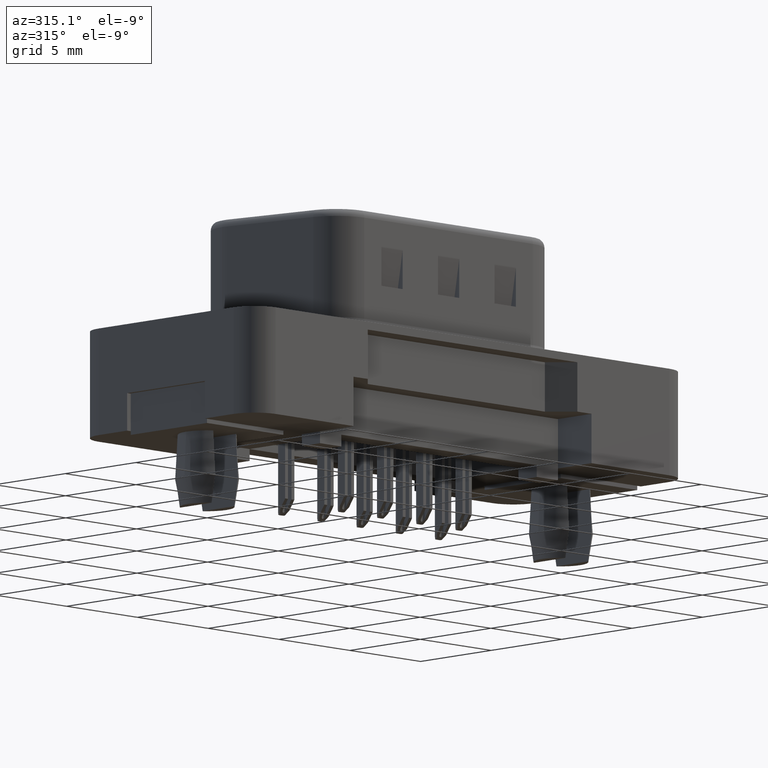
[diagram: clean part render]
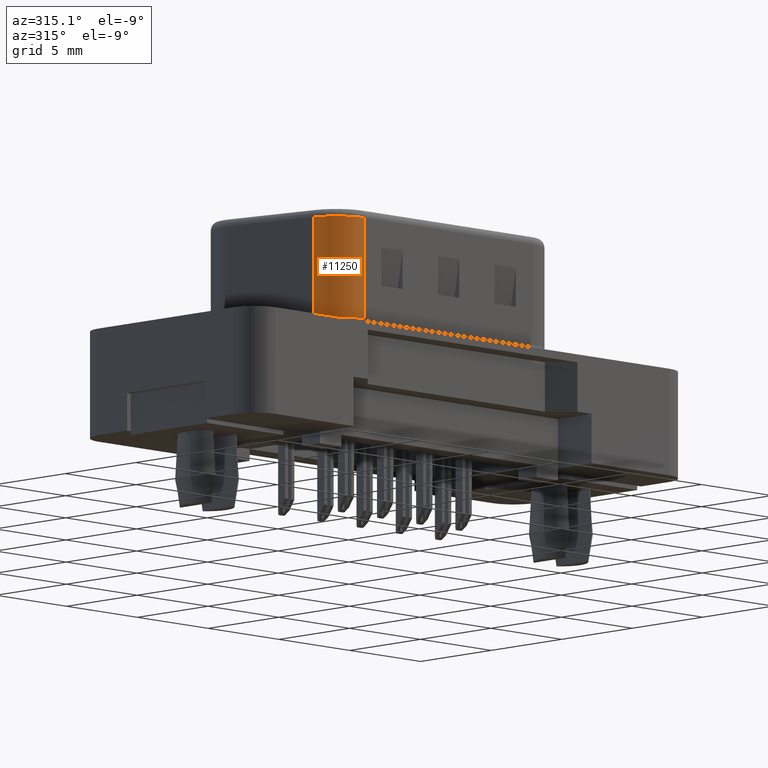
[diagram: same view with one face highlighted and labeled with its STEP entity id]
A machine part, auxiliary view. The second image highlights one B-rep face of the part: STEP entity #11250.
In plain terms, the highlighted cylindrical surface (partial cylindrical patch) has radius 2 mm, axis along (-0, -0, -1).
Its self-contained STEP definition (entity closure, byte-faithful):
#745 = CARTESIAN_POINT ( 'NONE',  ( 4.575231714431224894, -2.927296355333847799, 6.520000000000000462 ) ) ;
#1359 = AXIS2_PLACEMENT_3D ( 'NONE', #5407, #2038, #9873 ) ;
#1553 = ORIENTED_EDGE ( 'NONE', *, *, #1995, .T. ) ;
#1583 = DIRECTION ( 'NONE',  ( -0.0000000000000000000, -0.0000000000000000000, -1.000000000000000000 ) ) ;
#1752 = FACE_OUTER_BOUND ( 'NONE', #9006, .T. ) ;
#1794 = LINE ( 'NONE', #745, #12537 ) ;
#1816 = CYLINDRICAL_SURFACE ( 'NONE', #8895, 2.000000000000000000 ) ;
#1904 = LINE ( 'NONE', #5411, #3863 ) ;
#1995 = EDGE_CURVE ( 'NONE', #12633, #10842, #1794, .T. ) ;
#2038 = DIRECTION ( 'NONE',  ( 0.0000000000000000000, 0.0000000000000000000, 1.000000000000000000 ) ) ;
#2545 = CIRCLE ( 'NONE', #5237, 2.000000000000000000 ) ;
#2789 = DIRECTION ( 'NONE',  ( -1.000000000000000000, 0.0000000000000000000, 0.0000000000000000000 ) ) ;
#3097 = CARTESIAN_POINT ( 'NONE',  ( 4.575231714431224894, -2.927296355333847799, 0.8999999999999998002 ) ) ;
#3863 = VECTOR ( 'NONE', #8290, 1000.000000000000000 ) ;
#4113 = DIRECTION ( 'NONE',  ( -0.0000000000000000000, -0.0000000000000000000, -1.000000000000000000 ) ) ;
#5162 = ORIENTED_EDGE ( 'NONE', *, *, #11182, .T. ) ;
#5237 = AXIS2_PLACEMENT_3D ( 'NONE', #9795, #1583, #2789 ) ;
#5382 = DIRECTION ( 'NONE',  ( -0.0000000000000000000, -0.0000000000000000000, -1.000000000000000000 ) ) ;
#5407 = CARTESIAN_POINT ( 'NONE',  ( 6.544847220455644710, -2.580000000000000515, 0.8999999999999998002 ) ) ;
#5411 = CARTESIAN_POINT ( 'NONE',  ( 6.544847220455646486, -4.580000000000000959, 6.520000000000000462 ) ) ;
#5873 = ORIENTED_EDGE ( 'NONE', *, *, #13378, .F. ) ;
#6334 = VERTEX_POINT ( 'NONE', #8039 ) ;
#6721 = CIRCLE ( 'NONE', #1359, 2.000000000000000000 ) ;
#8039 = CARTESIAN_POINT ( 'NONE',  ( 6.544847220455646486, -4.580000000000000959, 0.8999999999999998002 ) ) ;
#8290 = DIRECTION ( 'NONE',  ( -0.0000000000000000000, -0.0000000000000000000, -1.000000000000000000 ) ) ;
#8752 = DIRECTION ( 'NONE',  ( -1.000000000000000000, 0.0000000000000000000, 0.0000000000000000000 ) ) ;
#8760 = VERTEX_POINT ( 'NONE', #11634 ) ;
#8895 = AXIS2_PLACEMENT_3D ( 'NONE', #11017, #4113, #8752 ) ;
#8999 = ORIENTED_EDGE ( 'NONE', *, *, #10717, .T. ) ;
#9006 = EDGE_LOOP ( 'NONE', ( #5873, #8999, #1553, #5162 ) ) ;
#9795 = CARTESIAN_POINT ( 'NONE',  ( 6.544847220455644710, -2.580000000000000515, 6.020000000000001350 ) ) ;
#9873 = DIRECTION ( 'NONE',  ( 1.000000000000000000, 0.0000000000000000000, 0.0000000000000000000 ) ) ;
#10717 = EDGE_CURVE ( 'NONE', #8760, #12633, #2545, .T. ) ;
#10842 = VERTEX_POINT ( 'NONE', #3097 ) ;
#11017 = CARTESIAN_POINT ( 'NONE',  ( 6.544847220455644710, -2.580000000000000515, 6.520000000000000462 ) ) ;
#11182 = EDGE_CURVE ( 'NONE', #10842, #6334, #6721, .T. ) ;
#11250 = ADVANCED_FACE ( 'NONE', ( #1752 ), #1816, .T. ) ;
#11634 = CARTESIAN_POINT ( 'NONE',  ( 6.544847220455646486, -4.580000000000000959, 6.020000000000001350 ) ) ;
#11671 = CARTESIAN_POINT ( 'NONE',  ( 4.575231714431224894, -2.927296355333847799, 6.020000000000001350 ) ) ;
#12537 = VECTOR ( 'NONE', #5382, 1000.000000000000000 ) ;
#12633 = VERTEX_POINT ( 'NONE', #11671 ) ;
#13378 = EDGE_CURVE ( 'NONE', #8760, #6334, #1904, .T. ) ;